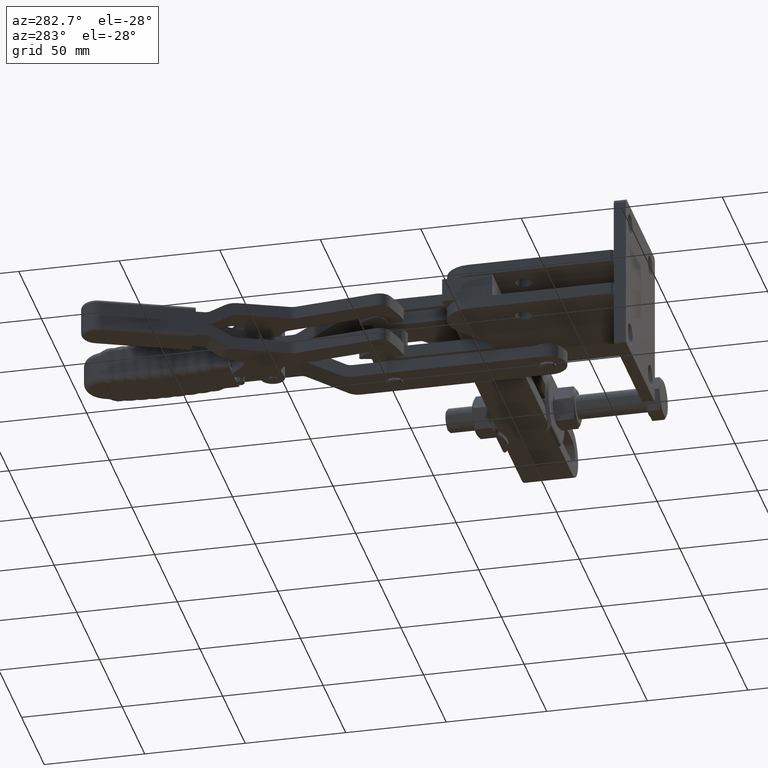
[diagram: clean part render]
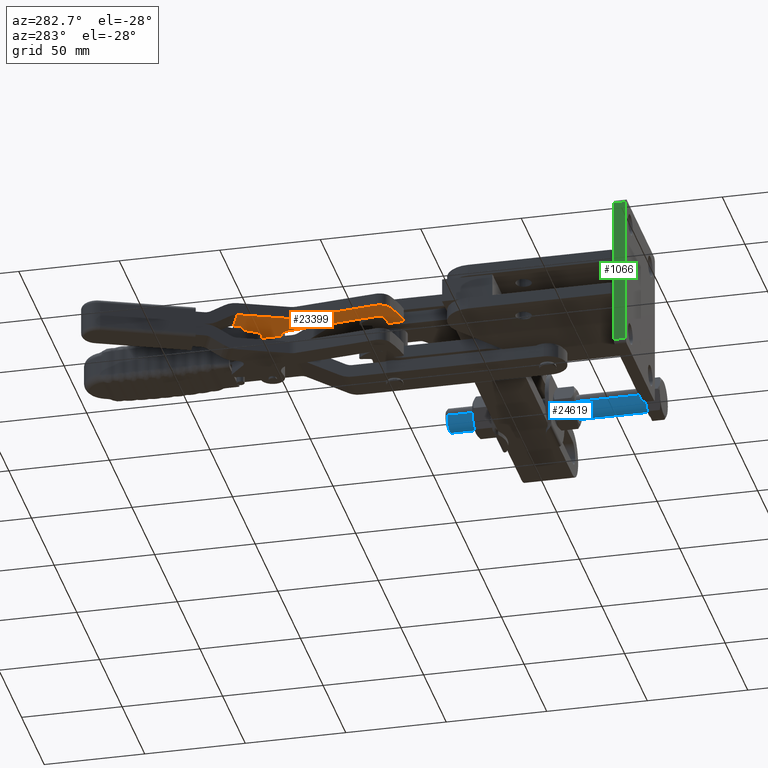
[diagram: same view with three faces highlighted in distinct colors, each labeled with its STEP entity id]
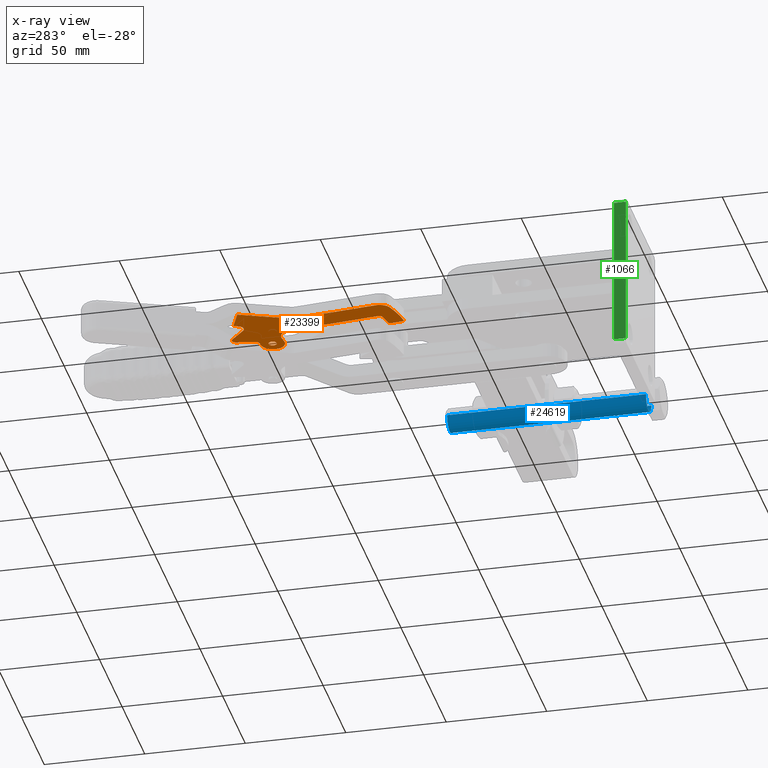
[diagram: x-ray of the same camera — body ghosted, the three highlighted faces saturated]
A machine part, auxiliary view with three faces highlighted in distinct colors.
The next image is the same camera in x-ray (body ghosted, the three faces saturated) — at least one of them is partly hidden behind the body in this view.
Their STEP definitions:

[orange] entity #23399 — the highlighted face is a freeform B-spline surface patch.
#21249=CARTESIAN_POINT('',(91.817410875517183,316.979438222346350,21.175000000000441));
#21250=VERTEX_POINT('',#21249);
#21275=CARTESIAN_POINT('',(95.755467900505622,317.680656353842720,21.175000000000441));
#21276=VERTEX_POINT('',#21275);
#21283=CARTESIAN_POINT('',(95.784536517170196,317.242824226650100,21.175000000000441));
#21284=VERTEX_POINT('',#21283);
#21285=CARTESIAN_POINT('',(93.786439388011473,317.330047288094140,21.175000000000441));
#21286=DIRECTION('',(1.559766E-016,-6.808855E-018,-1.000000000000000));
#21287=DIRECTION('',(-0.999048564579362,0.043611530722001,-1.561251E-016));
#21288=AXIS2_PLACEMENT_3D('',#21285,#21286,#21287);
#21289=CIRCLE('',#21288,2.000000000000000);
#21290=EDGE_CURVE('',#21276,#21284,#21289,.T.);
#21292=CARTESIAN_POINT('',(93.786439388011473,317.330047288094140,21.175000000000441));
#21293=DIRECTION('',(1.559766E-016,-6.808855E-018,-1.000000000000000));
#21294=DIRECTION('',(-0.999048564579362,0.043611530722001,-1.561251E-016));
#21295=AXIS2_PLACEMENT_3D('',#21292,#21293,#21294);
#21296=CIRCLE('',#21295,2.000000000000000);
#21297=EDGE_CURVE('',#21284,#21250,#21296,.T.);
#21918=CARTESIAN_POINT('',(72.182712659058424,328.147267712708190,21.175000000000455));
#21919=VERTEX_POINT('',#21918);
#21926=CARTESIAN_POINT('',(71.085021047219087,330.448579460141900,21.175000000000459));
#21927=VERTEX_POINT('',#21926);
#21928=CARTESIAN_POINT('',(71.085021047219087,330.448579460141900,21.175000000000459));
#21929=DIRECTION('',(0.430518194826782,-0.902581898734452,-1.393386E-015));
#21930=VECTOR('',#21929,2.549698537784195);
#21931=LINE('',#21928,#21930);
#21932=EDGE_CURVE('',#21927,#21919,#21931,.T.);
#22083=CARTESIAN_POINT('',(93.786439388011473,317.330047288094140,21.175000000000441));
#22084=DIRECTION('',(1.559766E-016,-6.808855E-018,-1.000000000000000));
#22085=DIRECTION('',(-0.999048564579362,0.043611530722001,-1.561251E-016));
#22086=AXIS2_PLACEMENT_3D('',#22083,#22084,#22085);
#22087=CIRCLE('',#22086,2.000000000000000);
#22088=EDGE_CURVE('',#21250,#21276,#22087,.T.);
#22273=CARTESIAN_POINT('',(60.254038262877174,325.282361122139890,21.175000000000455));
#22274=VERTEX_POINT('',#22273);
#22275=CARTESIAN_POINT('',(71.085021047219087,330.448579460141900,21.175000000000459));
#22276=DIRECTION('',(-0.902581898724559,-0.430518194847524,-2.960595E-016));
#22277=VECTOR('',#22276,11.999999999609132);
#22278=LINE('',#22275,#22277);
#22279=EDGE_CURVE('',#21927,#22274,#22278,.T.);
#22437=CARTESIAN_POINT('',(93.524770203679495,311.335755900617930,21.175000000000438));
#22438=VERTEX_POINT('',#22437);
#22439=CARTESIAN_POINT('',(89.528575945362007,311.510202023505940,21.175000000000441));
#22440=VERTEX_POINT('',#22439);
#22441=CARTESIAN_POINT('',(93.524770203679495,311.335755900617930,21.175000000000438));
#22442=DIRECTION('',(-0.999048564579362,0.043611530722003,8.881784E-016));
#22443=VECTOR('',#22442,4.000000000000039);
#22444=LINE('',#22441,#22443);
#22445=EDGE_CURVE('',#22438,#22440,#22444,.T.);
#22498=CARTESIAN_POINT('',(94.048108572343494,323.324338675570290,21.175000000000455));
#22499=VERTEX_POINT('',#22498);
#22500=CARTESIAN_POINT('',(93.786439388011473,317.330047288094140,21.175000000000441));
#22501=DIRECTION('',(6.254060E-017,1.432674E-015,-1.0));
#22502=DIRECTION('',(-0.043611530722001,-0.999048564579362,-1.434038E-015));
#22503=AXIS2_PLACEMENT_3D('',#22500,#22501,#22502);
#22504=CIRCLE('',#22503,6.000000000000002);
#22505=EDGE_CURVE('',#22499,#22438,#22504,.T.);
#22531=CARTESIAN_POINT('',(91.726105059679782,323.425701243036430,21.175000000000452));
#22532=VERTEX_POINT('',#22531);
#22533=CARTESIAN_POINT('',(91.726105059679782,323.425701243036430,21.175000000000452));
#22534=DIRECTION('',(0.999048564579362,-0.043611530722000,1.528565E-015));
#22535=VECTOR('',#22534,2.324214853000029);
#22536=LINE('',#22533,#22535);
#22537=EDGE_CURVE('',#22532,#22499,#22536,.T.);
#22583=CARTESIAN_POINT('',(89.870233605596894,324.950106799413960,21.175000000000452));
#22584=VERTEX_POINT('',#22583);
#22585=CARTESIAN_POINT('',(91.813328121686837,325.423798373665930,21.175000000000459));
#22586=DIRECTION('',(-5.056098E-016,-1.232586E-016,1.000000000000000));
#22587=DIRECTION('',(0.971547257319201,0.236845786949101,5.204170E-016));
#22588=AXIS2_PLACEMENT_3D('',#22585,#22586,#22587);
#22589=CIRCLE('',#22588,2.000000001494069);
#22590=EDGE_CURVE('',#22584,#22532,#22589,.T.);
#22616=CARTESIAN_POINT('',(87.644430345121521,334.080406676393350,21.175000000000459));
#22617=VERTEX_POINT('',#22616);
#22618=CARTESIAN_POINT('',(87.644430345121521,334.080406676393350,21.175000000000459));
#22619=DIRECTION('',(0.236845786287720,-0.971547257480433,-7.560823E-016));
#22620=VECTOR('',#22619,9.397689928802329);
#22621=LINE('',#22618,#22620);
#22622=EDGE_CURVE('',#22617,#22584,#22621,.T.);
#22668=CARTESIAN_POINT('',(84.247030615926548,334.979666793986210,21.175000000000463));
#22669=VERTEX_POINT('',#22668);
#22670=CARTESIAN_POINT('',(85.701335830054930,333.606715103243350,21.175000000000459));
#22671=DIRECTION('',(5.393171E-016,1.314758E-016,-1.000000000000000));
#22672=DIRECTION('',(0.971547257417299,0.236845786546701,5.551115E-016));
#22673=AXIS2_PLACEMENT_3D('',#22670,#22671,#22672);
#22674=CIRCLE('',#22673,2.000000000238704);
#22675=EDGE_CURVE('',#22669,#22617,#22674,.T.);
#22701=CARTESIAN_POINT('',(77.071916175674303,327.379394761813330,21.175000000000463));
#22702=VERTEX_POINT('',#22701);
#22703=CARTESIAN_POINT('',(77.071916175674303,327.379394761813330,21.175000000000463));
#22704=DIRECTION('',(0.686475845489497,0.727152606788616,0.0));
#22705=VECTOR('',#22704,10.452100372353184);
#22706=LINE('',#22703,#22705);
#22707=EDGE_CURVE('',#22702,#22669,#22706,.T.);
#22753=CARTESIAN_POINT('',(74.890458354962746,329.438822298083660,21.175000000000455));
#22754=DIRECTION('',(-7.724268E-016,-3.684361E-016,1.0));
#22755=DIRECTION('',(0.902581898600038,0.430518195108582,8.557969E-016));
#22756=AXIS2_PLACEMENT_3D('',#22753,#22754,#22755);
#22757=CIRCLE('',#22756,3.000000000115457);
#22758=EDGE_CURVE('',#21919,#22702,#22757,.T.);
#22798=CARTESIAN_POINT('',(71.970129390437066,299.088238887324220,21.175000000000416));
#22799=VERTEX_POINT('',#22798);
#22800=CARTESIAN_POINT('',(71.391329396266727,301.933017242763870,21.175000000000409));
#22801=VERTEX_POINT('',#22800);
#22802=CARTESIAN_POINT('',(65.975837988145642,299.349908072302920,21.175000000000406));
#22803=DIRECTION('',(-1.704188E-016,7.439305E-018,1.0));
#22804=DIRECTION('',(-0.999048564579362,0.043611530722001,-1.705811E-016));
#22805=AXIS2_PLACEMENT_3D('',#22802,#22803,#22804);
#22806=CIRCLE('',#22805,6.000000014829336);
#22807=EDGE_CURVE('',#22799,#22801,#22806,.T.);
#22840=CARTESIAN_POINT('',(70.182831616494113,258.145001033192610,21.175000000000349));
#22841=VERTEX_POINT('',#22840);
#22842=CARTESIAN_POINT('',(70.182831616494113,258.145001033192610,21.175000000000349));
#22843=DIRECTION('',(0.043611530722000,0.999048564579362,1.647093E-015));
#22844=VECTOR('',#22843,40.982229799179265);
#22845=LINE('',#22842,#22844);
#22846=EDGE_CURVE('',#22841,#22799,#22845,.T.);
#22892=CARTESIAN_POINT('',(74.472995612211534,252.130423903569750,21.175000000000345));
#22893=VERTEX_POINT('',#22892);
#22894=CARTESIAN_POINT('',(76.177123002840858,257.883331848526100,21.175000000000349));
#22895=DIRECTION('',(1.299805E-016,-5.674046E-018,-1.000000000000000));
#22896=DIRECTION('',(-0.999048564576575,0.043611530785852,-1.301043E-016));
#22897=AXIS2_PLACEMENT_3D('',#22894,#22895,#22896);
#22898=CIRCLE('',#22897,5.999999998886266);
#22899=EDGE_CURVE('',#22893,#22841,#22898,.T.);
#22946=CARTESIAN_POINT('',(88.794257386424675,249.513543995489670,21.175000000000335));
#22947=VERTEX_POINT('',#22946);
#22948=CARTESIAN_POINT('',(93.786439381102696,317.330047248759000,21.175000000000441));
#22949=DIRECTION('',(4.080701E-016,1.377591E-015,-1.000000000000000));
#22950=DIRECTION('',(-0.284021232062263,-0.958817990933542,-1.436759E-015));
#22951=AXIS2_PLACEMENT_3D('',#22948,#22949,#22950);
#22952=CIRCLE('',#22951,67.999999960063747);
#22953=EDGE_CURVE('',#22947,#22893,#22952,.T.);
#23000=CARTESIAN_POINT('',(89.866720391926123,250.467233983481490,21.175000000000349));
#23001=VERTEX_POINT('',#23000);
#23002=CARTESIAN_POINT('',(88.867671827654888,250.510845514190010,21.175000000000338));
#23003=DIRECTION('',(1.018830E-016,1.384034E-015,-1.0));
#23004=DIRECTION('',(-0.073414441252864,-0.997301519007933,-1.387779E-015));
#23005=AXIS2_PLACEMENT_3D('',#23002,#23003,#23004);
#23006=CIRCLE('',#23005,0.999999999691557);
#23007=EDGE_CURVE('',#23001,#22947,#23006,.T.);
#23033=CARTESIAN_POINT('',(90.128517720111773,256.464460877483420,21.175000000000345));
#23034=VERTEX_POINT('',#23033);
#23035=CARTESIAN_POINT('',(90.128517720111773,256.464460877483420,21.175000000000345));
#23036=DIRECTION('',(-0.043611530722003,-0.999048564579362,5.918291E-016));
#23037=VECTOR('',#23036,6.002938302130477);
#23038=LINE('',#23035,#23037);
#23039=EDGE_CURVE('',#23034,#23001,#23038,.T.);
#23085=CARTESIAN_POINT('',(89.205812930608033,257.505153964022720,21.175000000000349));
#23086=VERTEX_POINT('',#23085);
#23087=CARTESIAN_POINT('',(89.129469154679768,256.508072407902940,21.175000000000356));
#23088=DIRECTION('',(1.429785E-016,-6.241451E-018,-1.0));
#23089=DIRECTION('',(0.999048564594162,-0.043611530382968,1.431147E-016));
#23090=AXIS2_PLACEMENT_3D('',#23087,#23088,#23089);
#23091=CIRCLE('',#23090,1.000000000838607);
#23092=EDGE_CURVE('',#23086,#23034,#23091,.T.);
#23139=CARTESIAN_POINT('',(82.926770194822808,258.321000651635590,21.175000000000352));
#23140=VERTEX_POINT('',#23139);
#23141=CARTESIAN_POINT('',(93.786439356437342,317.330047014717080,21.175000000000438));
#23142=DIRECTION('',(-2.545294E-016,-1.383056E-015,1.0));
#23143=DIRECTION('',(0.180994486856969,0.983484110561723,1.406283E-015));
#23144=AXIS2_PLACEMENT_3D('',#23141,#23142,#23143);
#23145=CIRCLE('',#23144,59.999999724833565);
#23146=EDGE_CURVE('',#23140,#23086,#23145,.T.);
#23193=CARTESIAN_POINT('',(81.290662038787815,260.375191933931430,21.175000000000360));
#23194=VERTEX_POINT('',#23193);
#23195=CARTESIAN_POINT('',(83.288759167513177,260.287968872506330,21.175000000000345));
#23196=DIRECTION('',(-1.429785E-016,6.241451E-018,1.0));
#23197=DIRECTION('',(0.999048564579362,-0.043611530722001,1.431147E-016));
#23198=AXIS2_PLACEMENT_3D('',#23195,#23196,#23197);
#23199=CIRCLE('',#23198,1.999999999566215);
#23200=EDGE_CURVE('',#23194,#23140,#23199,.T.);
#23226=CARTESIAN_POINT('',(83.272615373553805,305.777579820361780,21.175000000000431));
#23227=VERTEX_POINT('',#23226);
#23228=CARTESIAN_POINT('',(83.272615373553805,305.777579820361780,21.175000000000431));
#23229=DIRECTION('',(-0.043611530722001,-0.999048564579362,-1.563501E-015));
#23230=VECTOR('',#23229,45.445626465162377);
#23231=LINE('',#23228,#23230);
#23232=EDGE_CURVE('',#23227,#23194,#23231,.T.);
#23278=CARTESIAN_POINT('',(89.266906761029958,305.515910636029790,21.175000000000423));
#23279=DIRECTION('',(-6.455803E-017,-1.478889E-015,1.0));
#23280=DIRECTION('',(-0.043611530722001,-0.999048564579362,-1.480297E-015));
#23281=AXIS2_PLACEMENT_3D('',#23278,#23279,#23280);
#23282=CIRCLE('',#23281,5.999999999999995);
#23283=EDGE_CURVE('',#22440,#23227,#23282,.T.);
#23355=CARTESIAN_POINT('',(71.391329396266727,301.933017242763870,21.175000000000409));
#23356=DIRECTION('',(-0.430518194847520,0.902581898724561,1.785318E-015));
#23357=VECTOR('',#23356,25.869501606858066);
#23358=LINE('',#23355,#23357);
#23359=EDGE_CURVE('',#22801,#22274,#23358,.T.);
#23365=CARTESIAN_POINT('',(60.329227530373615,337.329143289801890,21.175000000000459));
#23366=CARTESIAN_POINT('',(103.537639625922080,335.442963720195790,21.175000000000466));
#23367=CARTESIAN_POINT('',(56.502838024966536,249.674596897784680,21.175000000000338));
#23368=CARTESIAN_POINT('',(99.711250120515004,247.788417328178530,21.175000000000345));
#23369=B_SPLINE_SURFACE_WITH_KNOTS('',1,1,((#23365,#23367),(#23366,#23368)),.UNSPECIFIED.,.F.,.F.,.U.,(2,2),(2,2),(0.0,43.249561260058336),(0.0,87.738023455269300),.UNSPECIFIED.);
#23370=ORIENTED_EDGE('',*,*,#22279,.F.);
#23371=ORIENTED_EDGE('',*,*,#21932,.T.);
#23372=ORIENTED_EDGE('',*,*,#22758,.T.);
#23373=ORIENTED_EDGE('',*,*,#22707,.T.);
#23374=ORIENTED_EDGE('',*,*,#22675,.T.);
#23375=ORIENTED_EDGE('',*,*,#22622,.T.);
#23376=ORIENTED_EDGE('',*,*,#22590,.T.);
#23377=ORIENTED_EDGE('',*,*,#22537,.T.);
#23378=ORIENTED_EDGE('',*,*,#22505,.T.);
#23379=ORIENTED_EDGE('',*,*,#22445,.T.);
#23380=ORIENTED_EDGE('',*,*,#23283,.T.);
#23381=ORIENTED_EDGE('',*,*,#23232,.T.);
#23382=ORIENTED_EDGE('',*,*,#23200,.T.);
#23383=ORIENTED_EDGE('',*,*,#23146,.T.);
#23384=ORIENTED_EDGE('',*,*,#23092,.T.);
#23385=ORIENTED_EDGE('',*,*,#23039,.T.);
#23386=ORIENTED_EDGE('',*,*,#23007,.T.);
#23387=ORIENTED_EDGE('',*,*,#22953,.T.);
#23388=ORIENTED_EDGE('',*,*,#22899,.T.);
#23389=ORIENTED_EDGE('',*,*,#22846,.T.);
#23390=ORIENTED_EDGE('',*,*,#22807,.T.);
#23391=ORIENTED_EDGE('',*,*,#23359,.T.);
#23392=EDGE_LOOP('',(#23370,#23371,#23372,#23373,#23374,#23375,#23376,#23377,#23378,#23379,#23380,#23381,#23382,#23383,#23384,#23385,#23386,#23387,#23388,#23389,#23390,#23391));
#23393=FACE_OUTER_BOUND('',#23392,.T.);
#23394=ORIENTED_EDGE('',*,*,#21297,.F.);
#23395=ORIENTED_EDGE('',*,*,#21290,.F.);
#23396=ORIENTED_EDGE('',*,*,#22088,.F.);
#23397=EDGE_LOOP('',(#23394,#23395,#23396));
#23398=FACE_BOUND('',#23397,.T.);
#23399=ADVANCED_FACE('',(#23393,#23398),#23369,.T.);

[blue] entity #24619 — the highlighted cylindrical surface (edge-blend (fillet) strip) has radius 6 mm, axis along (-0, 1, 0).
#24509=CARTESIAN_POINT('',(4.440892E-015,5.999999999999997,0.0));
#24510=VERTEX_POINT('',#24509);
#24511=CARTESIAN_POINT('',(98.926362499999982,6.000000000000018,7.347638E-016));
#24512=VERTEX_POINT('',#24511);
#24513=CARTESIAN_POINT('',(4.440892E-015,5.999999999999997,0.0));
#24514=DIRECTION('',(1.0,0.0,0.0));
#24515=VECTOR('',#24514,98.926362499999982);
#24516=LINE('',#24513,#24515);
#24517=EDGE_CURVE('',#24510,#24512,#24516,.T.);
#24519=CARTESIAN_POINT('',(7.283762E-016,-6.000000000000002,7.347638E-016));
#24520=VERTEX_POINT('',#24519);
#24528=CARTESIAN_POINT('',(98.926362499999982,-5.999999999999997,7.347638E-016));
#24529=VERTEX_POINT('',#24528);
#24530=CARTESIAN_POINT('',(98.926362499999982,-5.999999999999997,7.347638E-016));
#24531=DIRECTION('',(-1.0,0.0,0.0));
#24532=VECTOR('',#24531,98.926362499999982);
#24533=LINE('',#24530,#24532);
#24534=EDGE_CURVE('',#24529,#24520,#24533,.T.);
#24559=CARTESIAN_POINT('',(98.926362499999982,9.861672E-015,0.0));
#24560=DIRECTION('',(1.0,0.0,0.0));
#24561=DIRECTION('',(0.0,-1.0,0.0));
#24562=AXIS2_PLACEMENT_3D('',#24559,#24560,#24561);
#24563=CIRCLE('',#24562,6.000000000000007);
#24564=EDGE_CURVE('',#24529,#24512,#24563,.T.);
#24602=CARTESIAN_POINT('',(52.649999999999991,4.243905E-015,0.0));
#24603=DIRECTION('',(1.0,1.213960E-016,0.0));
#24604=DIRECTION('',(0.0,1.0,0.0));
#24605=AXIS2_PLACEMENT_3D('',#24602,#24603,#24604);
#24606=CYLINDRICAL_SURFACE('',#24605,6.000000000000007);
#24607=ORIENTED_EDGE('',*,*,#24517,.T.);
#24608=ORIENTED_EDGE('',*,*,#24564,.F.);
#24609=ORIENTED_EDGE('',*,*,#24534,.T.);
#24610=CARTESIAN_POINT('',(0.0,-2.147596E-015,0.0));
#24611=DIRECTION('',(1.0,0.0,0.0));
#24612=DIRECTION('',(0.0,1.0,0.0));
#24613=AXIS2_PLACEMENT_3D('',#24610,#24611,#24612);
#24614=CIRCLE('',#24613,6.0);
#24615=EDGE_CURVE('',#24520,#24510,#24614,.T.);
#24616=ORIENTED_EDGE('',*,*,#24615,.T.);
#24617=EDGE_LOOP('',(#24607,#24608,#24609,#24616));
#24618=FACE_OUTER_BOUND('',#24617,.T.);
#24619=ADVANCED_FACE('',(#24618),#24606,.T.);

[green] entity #1066 — the highlighted planar face has unit normal (-1, 0, 0).
#760=CARTESIAN_POINT('',(45.511439388011361,130.750047288092900,-22.674999999999976));
#761=VERTEX_POINT('',#760);
#762=CARTESIAN_POINT('',(45.511439388011361,130.750047288092900,52.325000000000031));
#763=VERTEX_POINT('',#762);
#764=CARTESIAN_POINT('',(45.511439388011361,130.750047288092900,-22.674999999999976));
#765=DIRECTION('',(0.0,0.0,1.0));
#766=VECTOR('',#765,75.0);
#767=LINE('',#764,#766);
#768=EDGE_CURVE('',#761,#763,#767,.T.);
#877=CARTESIAN_POINT('',(45.511439388011361,136.750047288092900,-22.674999999999976));
#878=VERTEX_POINT('',#877);
#879=CARTESIAN_POINT('',(45.511439388011361,136.750047288092900,-22.674999999999976));
#880=DIRECTION('',(0.0,-1.0,0.0));
#881=VECTOR('',#880,6.0);
#882=LINE('',#879,#881);
#883=EDGE_CURVE('',#878,#761,#882,.T.);
#1032=CARTESIAN_POINT('',(45.511439388011361,136.750047288092900,52.325000000000031));
#1033=VERTEX_POINT('',#1032);
#1041=CARTESIAN_POINT('',(45.511439388011361,136.750047288092900,52.325000000000031));
#1042=DIRECTION('',(0.0,-1.0,0.0));
#1043=VECTOR('',#1042,6.0);
#1044=LINE('',#1041,#1043);
#1045=EDGE_CURVE('',#1033,#763,#1044,.T.);
#1050=CARTESIAN_POINT('',(45.511439388011361,136.750047288092900,-22.674999999999976));
#1051=DIRECTION('',(-1.0,0.0,0.0));
#1052=DIRECTION('',(0.0,-1.0,0.0));
#1053=AXIS2_PLACEMENT_3D('',#1050,#1051,#1052);
#1054=PLANE('',#1053);
#1055=ORIENTED_EDGE('',*,*,#768,.T.);
#1056=ORIENTED_EDGE('',*,*,#1045,.F.);
#1057=CARTESIAN_POINT('',(45.511439388011361,136.750047288092900,-22.674999999999976));
#1058=DIRECTION('',(0.0,0.0,1.0));
#1059=VECTOR('',#1058,75.0);
#1060=LINE('',#1057,#1059);
#1061=EDGE_CURVE('',#878,#1033,#1060,.T.);
#1062=ORIENTED_EDGE('',*,*,#1061,.F.);
#1063=ORIENTED_EDGE('',*,*,#883,.T.);
#1064=EDGE_LOOP('',(#1055,#1056,#1062,#1063));
#1065=FACE_OUTER_BOUND('',#1064,.T.);
#1066=ADVANCED_FACE('',(#1065),#1054,.T.);